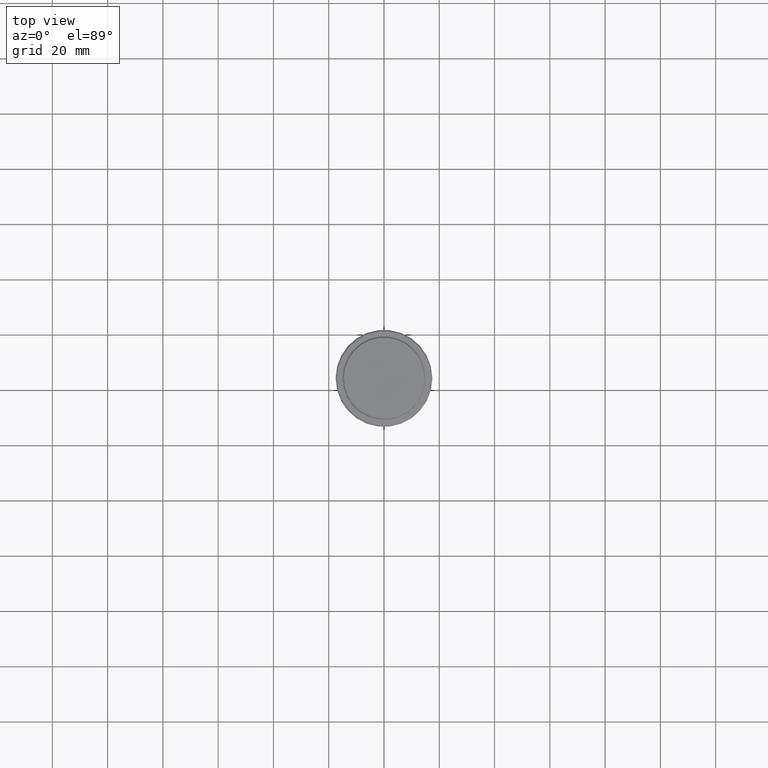
[diagram: clean part render]
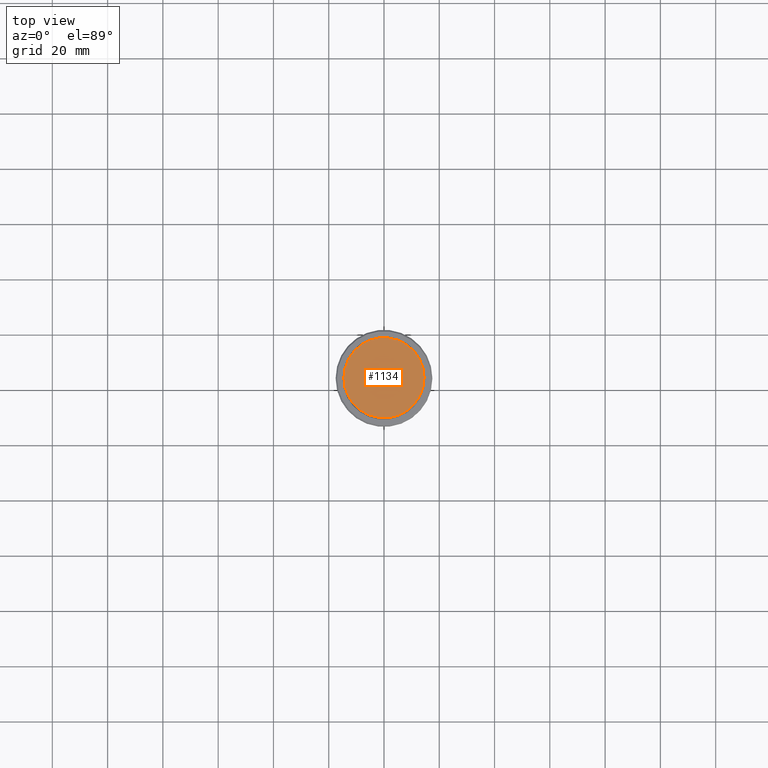
[diagram: same view with one face highlighted and labeled with its STEP entity id]
A machine part, top view. The second image highlights one B-rep face of the part: STEP entity #1134.
In plain terms, the highlighted planar face has unit normal (0, -0, 1).
Its self-contained STEP definition (entity closure, byte-faithful):
#135 = CIRCLE ( 'NONE', #1153, 14.49999999999998401 ) ;
#205 = EDGE_CURVE ( 'NONE', #1098, #990, #135, .T. ) ;
#231 = CARTESIAN_POINT ( 'NONE',  ( 14.49999999999998401, 1.806354028742345013E-15, 0.000000000000000000 ) ) ;
#306 = ORIENTED_EDGE ( 'NONE', *, *, #626, .T. ) ;
#393 = CARTESIAN_POINT ( 'NONE',  ( 0.000000000000000000, 0.000000000000000000, 0.000000000000000000 ) ) ;
#400 = AXIS2_PLACEMENT_3D ( 'NONE', #641, #1069, #1201 ) ;
#460 = AXIS2_PLACEMENT_3D ( 'NONE', #1120, #591, #473 ) ;
#473 = DIRECTION ( 'NONE',  ( 1.000000000000000000, 0.000000000000000000, 0.000000000000000000 ) ) ;
#568 = CARTESIAN_POINT ( 'NONE',  ( -14.49999999999998401, 0.000000000000000000, 0.000000000000000000 ) ) ;
#591 = DIRECTION ( 'NONE',  ( 0.000000000000000000, -0.000000000000000000, 1.000000000000000000 ) ) ;
#626 = EDGE_CURVE ( 'NONE', #990, #1098, #830, .T. ) ;
#641 = CARTESIAN_POINT ( 'NONE',  ( 0.000000000000000000, 0.000000000000000000, 0.000000000000000000 ) ) ;
#773 = ORIENTED_EDGE ( 'NONE', *, *, #205, .T. ) ;
#783 = PLANE ( 'NONE',  #460 ) ;
#830 = CIRCLE ( 'NONE', #400, 14.49999999999998401 ) ;
#845 = DIRECTION ( 'NONE',  ( -0.000000000000000000, -0.000000000000000000, 1.000000000000000000 ) ) ;
#990 = VERTEX_POINT ( 'NONE', #231 ) ;
#1069 = DIRECTION ( 'NONE',  ( -0.000000000000000000, -0.000000000000000000, 1.000000000000000000 ) ) ;
#1098 = VERTEX_POINT ( 'NONE', #568 ) ;
#1120 = CARTESIAN_POINT ( 'NONE',  ( 0.000000000000000000, 0.000000000000000000, 0.000000000000000000 ) ) ;
#1134 = ADVANCED_FACE ( 'NONE', ( #1319 ), #783, .T. ) ;
#1153 = AXIS2_PLACEMENT_3D ( 'NONE', #393, #845, #1269 ) ;
#1199 = EDGE_LOOP ( 'NONE', ( #773, #306 ) ) ;
#1201 = DIRECTION ( 'NONE',  ( 1.000000000000000000, 0.000000000000000000, 0.000000000000000000 ) ) ;
#1269 = DIRECTION ( 'NONE',  ( 1.000000000000000000, 0.000000000000000000, 0.000000000000000000 ) ) ;
#1319 = FACE_OUTER_BOUND ( 'NONE', #1199, .T. ) ;